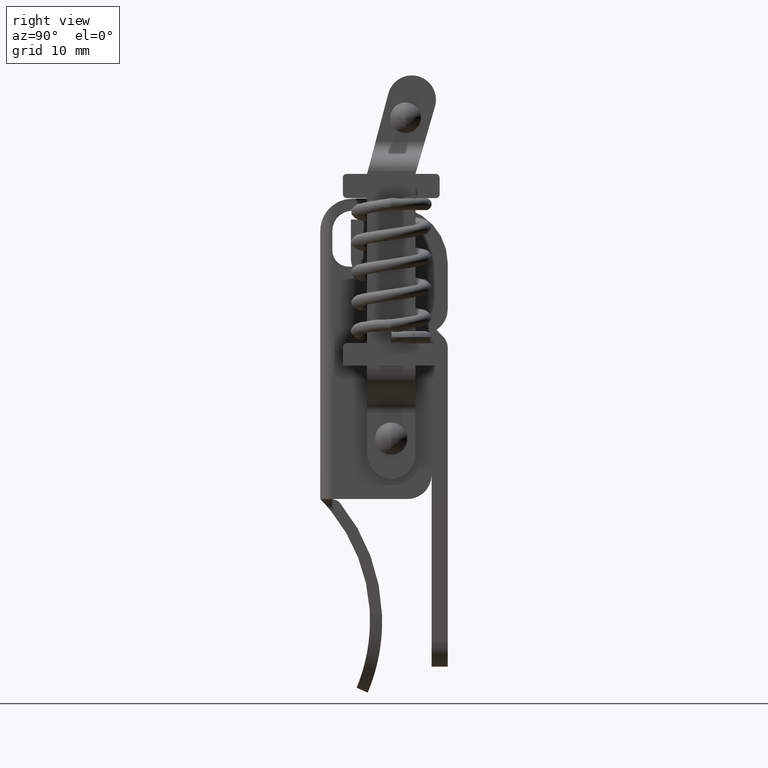
[diagram: clean part render]
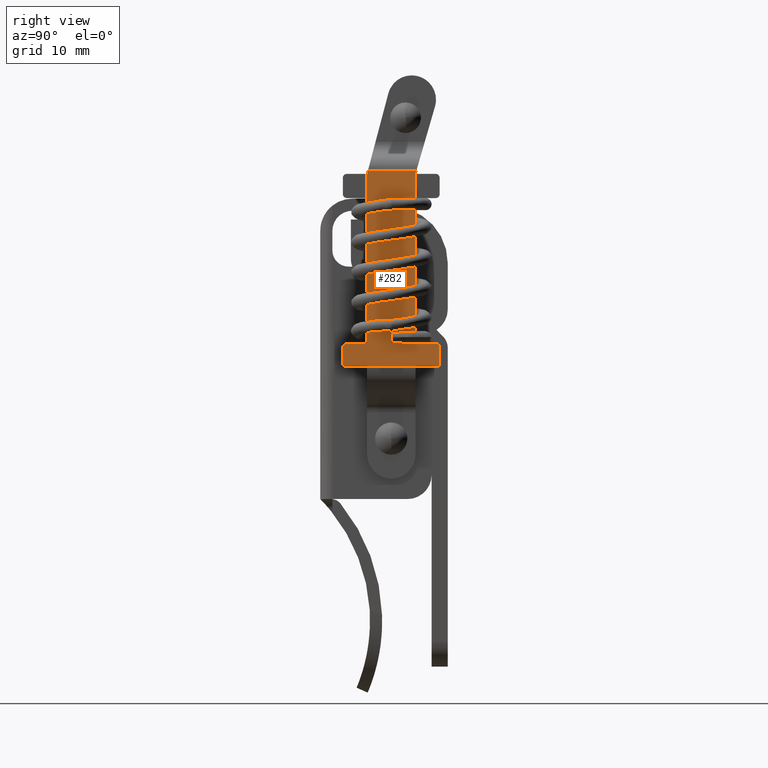
[diagram: same view with one face highlighted and labeled with its STEP entity id]
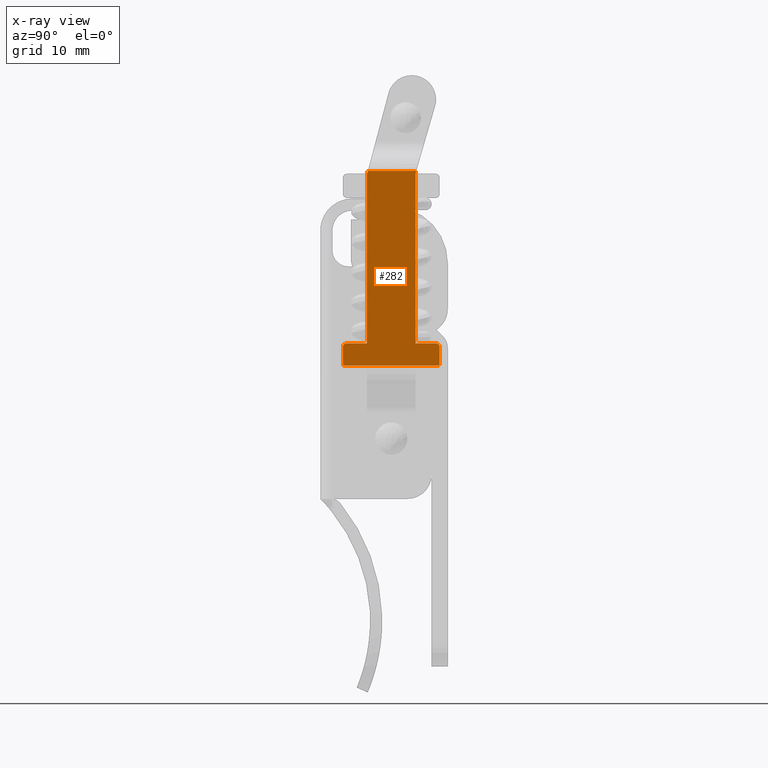
[diagram: x-ray of the same camera — body ghosted, the highlighted face saturated]
A machine part, right view. The second image highlights one B-rep face of the part: STEP entity #282.
The next image is the same camera in x-ray: the body ghosted, the highlighted face saturated — about 0% of this face is hidden behind the body in this view.
In plain terms, the highlighted planar face has unit normal (1, 0, 0).
Its self-contained STEP definition (entity closure, byte-faithful):
#282=ADVANCED_FACE('',(#942),#941,.T.);
#941=PLANE('',#6334);
#942=FACE_OUTER_BOUND('',#6335,.T.);
#6331=CARTESIAN_POINT('',(3.42500000000E+01,5.42171853712E+00,-3.31740260862E+01));
#6332=DIRECTION('',(1.00000000000E+00,0.00000000000E+00,6.10638704609E-16));
#6333=DIRECTION('',(-6.10638704609E-16,0.00000000000E+00,1.00000000000E+00));
#6334=AXIS2_PLACEMENT_3D('',#6331,#6332,#6333);
#6335=EDGE_LOOP('',(#7396,#7397,#7398,#7399,#7400,#7401,#7402,#7403,#7404,#7405,#7406,#7407,#7408,#7409));
#7396=ORIENTED_EDGE('',*,*,#8398,.F.);
#7397=ORIENTED_EDGE('',*,*,#8399,.F.);
#7398=ORIENTED_EDGE('',*,*,#8400,.F.);
#7399=ORIENTED_EDGE('',*,*,#8401,.F.);
#7400=ORIENTED_EDGE('',*,*,#8402,.F.);
#7401=ORIENTED_EDGE('',*,*,#8288,.F.);
#7402=ORIENTED_EDGE('',*,*,#8403,.F.);
#7403=ORIENTED_EDGE('',*,*,#8395,.T.);
#7404=ORIENTED_EDGE('',*,*,#8404,.F.);
#7405=ORIENTED_EDGE('',*,*,#8368,.T.);
#7406=ORIENTED_EDGE('',*,*,#8405,.F.);
#7407=ORIENTED_EDGE('',*,*,#8406,.F.);
#7408=ORIENTED_EDGE('',*,*,#8407,.F.);
#7409=ORIENTED_EDGE('',*,*,#8408,.F.);
#8288=EDGE_CURVE('',#9135,#9136,#9137,.T.);
#8368=EDGE_CURVE('',#9671,#9672,#9673,.T.);
#8395=EDGE_CURVE('',#9853,#9854,#9855,.T.);
#8398=EDGE_CURVE('',#9873,#9874,#9875,.T.);
#8399=EDGE_CURVE('',#9881,#9873,#9882,.T.);
#8400=EDGE_CURVE('',#9888,#9881,#9889,.T.);
#8401=EDGE_CURVE('',#9895,#9888,#9896,.T.);
#8402=EDGE_CURVE('',#9136,#9895,#9902,.T.);
#8403=EDGE_CURVE('',#9853,#9135,#9908,.T.);
#8404=EDGE_CURVE('',#9671,#9854,#9914,.T.);
#8405=EDGE_CURVE('',#9920,#9672,#9921,.T.);
#8406=EDGE_CURVE('',#9927,#9920,#9928,.T.);
#8407=EDGE_CURVE('',#9934,#9927,#9935,.T.);
#8408=EDGE_CURVE('',#9874,#9934,#9941,.T.);
#9135=VERTEX_POINT('',#13141);
#9136=VERTEX_POINT('',#13142);
#9137=LINE('',#13143,#13144);
#9671=VERTEX_POINT('',#13447);
#9672=VERTEX_POINT('',#13448);
#9673=LINE('',#13449,#13450);
#9853=VERTEX_POINT('',#13552);
#9854=VERTEX_POINT('',#13553);
#9855=LINE('',#13554,#13555);
#9873=VERTEX_POINT('',#13563);
#9874=VERTEX_POINT('',#13564);
#9875=LINE('',#13565,#13566);
#9881=VERTEX_POINT('',#13568);
#9882=LINE('',#13569,#13570);
#9888=VERTEX_POINT('',#13572);
#9889=LINE('',#13573,#13574);
#9895=VERTEX_POINT('',#13576);
#9896=LINE('',#13577,#13578);
#9902=CIRCLE('',#13583,5.00000000000E-01);
#9908=CIRCLE('',#13587,5.00000000000E-01);
#9914=CIRCLE('',#13591,5.00000000000E-01);
#9920=VERTEX_POINT('',#13592);
#9921=CIRCLE('',#13596,5.00000000000E-01);
#9927=VERTEX_POINT('',#13597);
#9928=LINE('',#13598,#13599);
#9934=VERTEX_POINT('',#13601);
#9935=LINE('',#13602,#13603);
#9941=LINE('',#13605,#13606);
#13141=CARTESIAN_POINT('',(3.42500000000E+01,-7.77828221172E+00,-3.04630011493E+01));
#13142=CARTESIAN_POINT('',(3.42500000000E+01,-7.77828154259E+00,-2.84630009366E+01));
#13143=CARTESIAN_POINT('',(3.42500000000E+01,-7.77828154259E+00,-3.04630011493E+01));
#13144=VECTOR('',#13145,2.00000021267E+00);
#13145=DIRECTION('',(0.00000000000E+00,0.00000000000E+00,1.00000000000E+00));
#13447=CARTESIAN_POINT('',(3.42500000000E+01,4.22171779991E+00,-3.04630029296E+01));
#13448=CARTESIAN_POINT('',(3.42500000000E+01,4.22171846904E+00,-2.84630027169E+01));
#13449=CARTESIAN_POINT('',(3.42500000000E+01,4.22171779991E+00,-3.04630029296E+01));
#13450=VECTOR('',#13451,2.00000021267E+00);
#13451=DIRECTION('',(0.00000000000E+00,0.00000000000E+00,1.00000000000E+00));
#13552=CARTESIAN_POINT('',(3.42500000000E+01,-7.68101914705E+00,-3.07593167934E+01));
#13553=CARTESIAN_POINT('',(3.42500000000E+01,4.12445604508E+00,-3.07593167934E+01));
#13554=CARTESIAN_POINT('',(3.42500000000E+01,-7.68101914705E+00,-3.07593167934E+01));
#13555=VECTOR('',#13556,1.18054751921E+01);
#13556=DIRECTION('',(0.00000000000E+00,1.00000000000E+00,0.00000000000E+00));
#13563=CARTESIAN_POINT('',(3.42500000000E+01,-4.68565810839E+00,-6.61222386507E+00));
#13564=CARTESIAN_POINT('',(3.42500000000E+01,1.32347311337E+00,-6.61222386507E+00));
#13565=CARTESIAN_POINT('',(3.42500000000E+01,-4.68565810839E+00,-6.61222386507E+00));
#13566=VECTOR('',#13567,6.00913122176E+00);
#13567=DIRECTION('',(0.00000000000E+00,1.00000000000E+00,0.00000000000E+00));
#13568=CARTESIAN_POINT('',(3.42500000000E+01,-4.77827902498E+00,-6.96300213718E+00));
#13569=CARTESIAN_POINT('',(3.42500000000E+01,-4.77827902498E+00,-6.96300213718E+00));
#13570=VECTOR('',#13571,3.62800262372E-01);
#13571=DIRECTION('',(0.00000000000E+00,2.55294513802E-01,9.66863336373E-01));
#13572=CARTESIAN_POINT('',(3.42500000000E+01,-4.77828117668E+00,-2.79630013412E+01));
#13573=CARTESIAN_POINT('',(3.42500000000E+01,-4.77828117668E+00,-2.79630013412E+01));
#13574=VECTOR('',#13575,2.09999992040E+01);
#13575=DIRECTION('',(0.00000000000E+00,1.02462027046E-07,1.00000000000E+00));
#13576=CARTESIAN_POINT('',(3.42500000000E+01,-7.27828154259E+00,-2.79630009366E+01));
#13577=CARTESIAN_POINT('',(3.42500000000E+01,-7.27828154259E+00,-2.79630009366E+01));
#13578=VECTOR('',#13579,2.50000036591E+00);
#13579=DIRECTION('',(0.00000000000E+00,1.00000000000E+00,-1.61844027006E-07));
#13580=CARTESIAN_POINT('',(3.42500000000E+01,-7.27828154259E+00,-2.84630009366E+01));
#13581=DIRECTION('',(-1.00000000000E+00,-0.00000000000E+00,-0.00000000000E+00));
#13582=DIRECTION('',(-0.00000000000E+00,-0.00000000000E+00,1.00000000000E+00));
#13583=AXIS2_PLACEMENT_3D('',#13580,#13581,#13582);
#13584=CARTESIAN_POINT('',(3.42500000000E+01,-7.27828221172E+00,-3.04630011493E+01));
#13585=DIRECTION('',(-1.00000000000E+00,-0.00000000000E+00,-0.00000000000E+00));
#13586=DIRECTION('',(-0.00000000000E+00,-0.00000000000E+00,1.00000000000E+00));
#13587=AXIS2_PLACEMENT_3D('',#13584,#13585,#13586);
#13588=CARTESIAN_POINT('',(3.42500000000E+01,3.72171779991E+00,-3.04630029296E+01));
#13589=DIRECTION('',(-1.00000000000E+00,-0.00000000000E+00,-0.00000000000E+00));
#13590=DIRECTION('',(-0.00000000000E+00,-0.00000000000E+00,1.00000000000E+00));
#13591=AXIS2_PLACEMENT_3D('',#13588,#13589,#13590);
#13592=CARTESIAN_POINT('',(3.42500000000E+01,3.72171846904E+00,-2.79630027169E+01));
#13593=CARTESIAN_POINT('',(3.42500000000E+01,3.72171846904E+00,-2.84630027169E+01));
#13594=DIRECTION('',(-1.00000000000E+00,-0.00000000000E+00,-0.00000000000E+00));
#13595=DIRECTION('',(-0.00000000000E+00,-0.00000000000E+00,1.00000000000E+00));
#13596=AXIS2_PLACEMENT_3D('',#13593,#13594,#13595);
#13597=CARTESIAN_POINT('',(3.42500000000E+01,1.22171809360E+00,-2.79630023123E+01));
#13598=CARTESIAN_POINT('',(3.42500000000E+01,1.22171809360E+00,-2.79630023123E+01));
#13599=VECTOR('',#13600,2.50000037545E+00);
#13600=DIRECTION('',(0.00000000000E+00,1.00000000000E+00,-1.61844012178E-07));
#13601=CARTESIAN_POINT('',(3.42500000000E+01,1.22172052448E+00,-6.96300190463E+00));
#13602=CARTESIAN_POINT('',(3.42500000000E+01,1.22172052448E+00,-6.96300190463E+00));
#13603=VECTOR('',#13604,2.10000004077E+01);
#13604=DIRECTION('',(0.00000000000E+00,-1.15756635636E-07,-1.00000000000E+00));
#13605=CARTESIAN_POINT('',(3.42500000000E+01,1.32347311337E+00,-6.61222386507E+00));
#13606=VECTOR('',#13607,3.65238035236E-01);
#13607=DIRECTION('',(0.00000000000E+00,-2.78592531644E-01,-9.60409392557E-01));